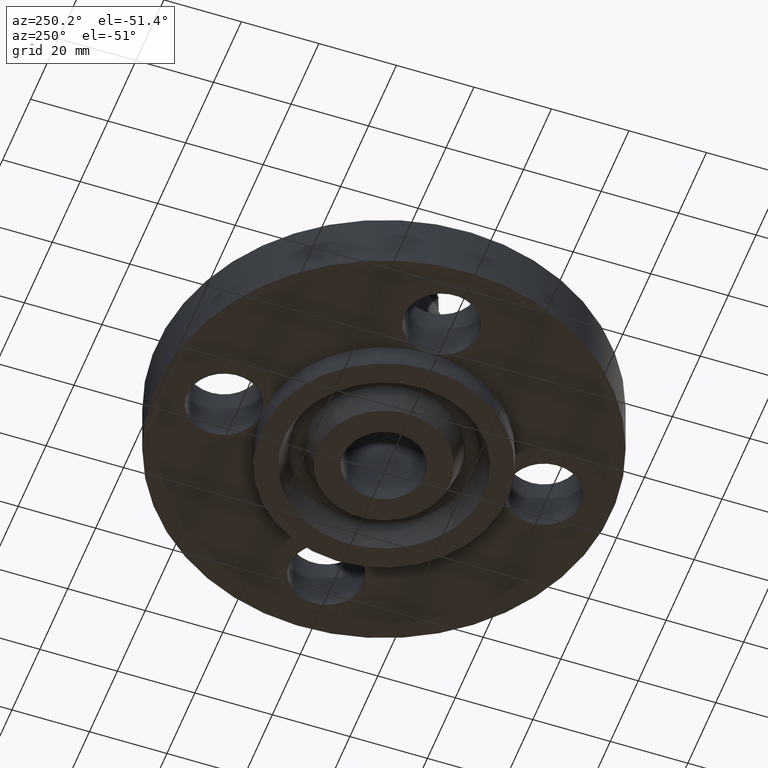
[diagram: clean part render]
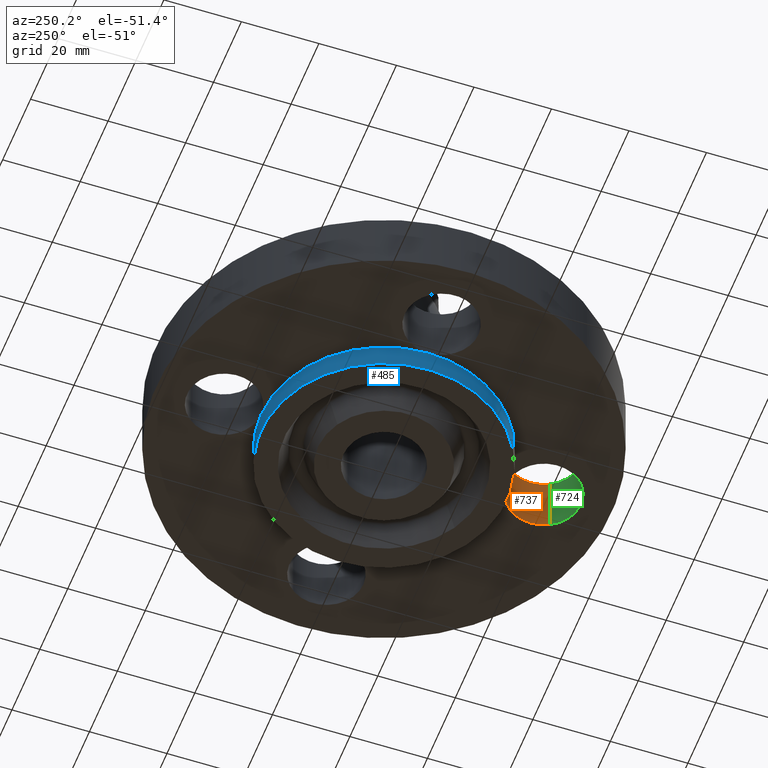
[diagram: same view with three faces highlighted in distinct colors, each labeled with its STEP entity id]
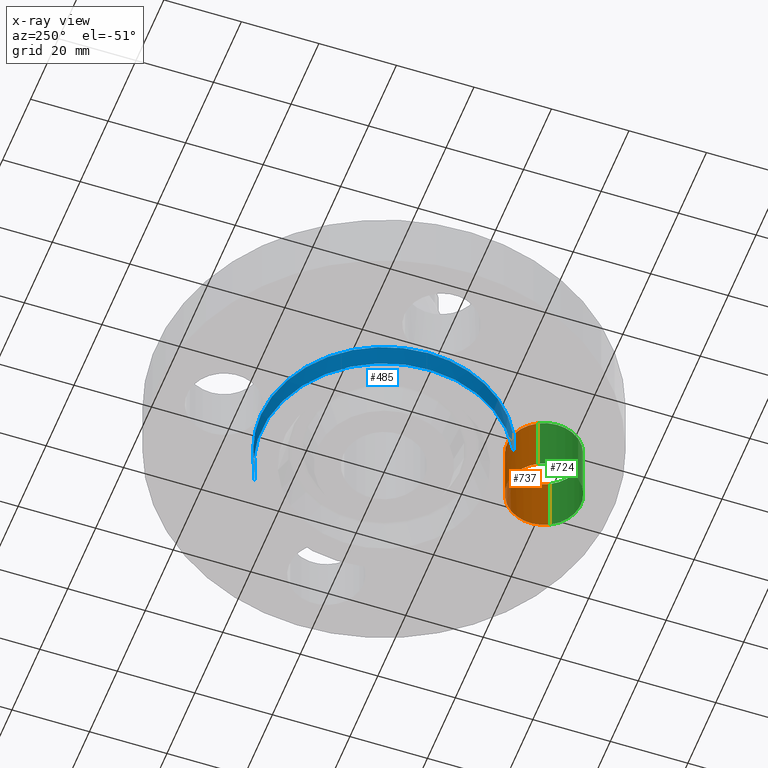
[diagram: x-ray of the same camera — body ghosted, the three highlighted faces saturated]
A machine part, auxiliary view with three faces highlighted in distinct colors.
The next image is the same camera in x-ray (body ghosted, the three faces saturated) — at least one of them is partly hidden behind the body in this view.
Their STEP definitions:

[orange] entity #737 — the highlighted cylindrical surface (partial cylindrical patch) has radius 9.525 mm, axis along (-0, 0, -1).
#530=AXIS2_PLACEMENT_3D('Circle Axis2P3D',#528,#529,$) ;
#544=AXIS2_PLACEMENT_3D('Circle Axis2P3D',#542,#543,$) ;
#697=AXIS2_PLACEMENT_3D('Cylinder Axis2P3D',#694,#695,#696) ;
#727=AXIS2_PLACEMENT_3D('Circle Axis2P3D',#725,#726,$) ;
#502=CARTESIAN_POINT('Vertex',(2.02112938519E-016,-1.25000000001,0.)) ;
#528=CARTESIAN_POINT('Axis2P3D Location',(2.70999320971E-016,-1.62500000001,0.)) ;
#532=CARTESIAN_POINT('Vertex',(-0.32909346071,-1.44521542303,0.)) ;
#539=CARTESIAN_POINT('Vertex',(0.32909346071,-1.80478457698,0.)) ;
#542=CARTESIAN_POINT('Axis2P3D Location',(2.70999320971E-016,-1.62500000001,0.)) ;
#694=CARTESIAN_POINT('Axis2P3D Location',(1.99005104862E-016,-1.62500000001,0.616062992128)) ;
#699=CARTESIAN_POINT('Line Origine',(0.32909346071,-1.80478457698,0.310000000001)) ;
#703=CARTESIAN_POINT('Vertex',(0.32909346071,-1.80478457698,0.620000000002)) ;
#706=CARTESIAN_POINT('Line Origine',(-0.32909346071,-1.44521542303,0.310000000001)) ;
#710=CARTESIAN_POINT('Vertex',(-0.32909346071,-1.44521542303,0.620000000002)) ;
#725=CARTESIAN_POINT('Axis2P3D Location',(1.99005104862E-016,-1.62500000001,0.620000000002)) ;
#529=DIRECTION('Axis2P3D Direction',(0.,0.,-0.0393700787402)) ;
#543=DIRECTION('Axis2P3D Direction',(0.,0.,-0.0393700787402)) ;
#695=DIRECTION('Axis2P3D Direction',(-0.,0.,-0.0393700787402)) ;
#696=DIRECTION('Axis2P3D XDirection',(-0.0345504945626,0.0188750212049,0.)) ;
#700=DIRECTION('Vector Direction',(0.,0.,-0.0393700787402)) ;
#707=DIRECTION('Vector Direction',(0.,0.,-0.0393700787402)) ;
#726=DIRECTION('Axis2P3D Direction',(-0.,0.,-0.0393700787402)) ;
#701=VECTOR('Line Direction',#700,0.0393700787402) ;
#708=VECTOR('Line Direction',#707,0.0393700787402) ;
#731=ORIENTED_EDGE('',*,*,#712,.F.) ;
#732=ORIENTED_EDGE('',*,*,#534,.T.) ;
#733=ORIENTED_EDGE('',*,*,#546,.T.) ;
#734=ORIENTED_EDGE('',*,*,#705,.T.) ;
#735=ORIENTED_EDGE('',*,*,#729,.F.) ;
#737=ADVANCED_FACE('PartBody',(#736),#698,.F.) ;
#531=CIRCLE('generated circle',#530,0.375000000001) ;
#545=CIRCLE('generated circle',#544,0.375000000001) ;
#728=CIRCLE('generated circle',#727,0.375000000001) ;
#698=CYLINDRICAL_SURFACE('generated cylinder',#697,0.375000000001) ;
#534=EDGE_CURVE('',#533,#503,#531,.T.) ;
#546=EDGE_CURVE('',#503,#540,#545,.T.) ;
#705=EDGE_CURVE('',#540,#704,#702,.F.) ;
#712=EDGE_CURVE('',#533,#711,#709,.F.) ;
#729=EDGE_CURVE('',#711,#704,#728,.T.) ;
#730=EDGE_LOOP('',(#731,#732,#733,#734,#735)) ;
#736=FACE_OUTER_BOUND('',#730,.T.) ;
#702=LINE('Line',#699,#701) ;
#709=LINE('Line',#706,#708) ;
#503=VERTEX_POINT('',#502) ;
#533=VERTEX_POINT('',#532) ;
#540=VERTEX_POINT('',#539) ;
#704=VERTEX_POINT('',#703) ;
#711=VERTEX_POINT('',#710) ;

[blue] entity #485 — the highlighted cylindrical surface (partial cylindrical patch) has radius 31.75 mm, axis along (0, 0, -1).
#435=AXIS2_PLACEMENT_3D('Cylinder Axis2P3D',#432,#433,#434) ;
#439=AXIS2_PLACEMENT_3D('Circle Axis2P3D',#437,#438,$) ;
#455=AXIS2_PLACEMENT_3D('Circle Axis2P3D',#453,#454,$) ;
#462=AXIS2_PLACEMENT_3D('Circle Axis2P3D',#460,#461,$) ;
#467=AXIS2_PLACEMENT_3D('Circle Axis2P3D',#465,#466,$) ;
#79=CARTESIAN_POINT('Vertex',(3.90510912389E-015,1.25000000001,1.39870617276E-016)) ;
#432=CARTESIAN_POINT('Axis2P3D Location',(0.,0.,1.)) ;
#437=CARTESIAN_POINT('Axis2P3D Location',(0.,0.,-0.250000000001)) ;
#441=CARTESIAN_POINT('Vertex',(-0.599281923258,-1.09697820237,-0.250000000001)) ;
#443=CARTESIAN_POINT('Vertex',(0.599281923258,1.09697820237,-0.250000000001)) ;
#446=CARTESIAN_POINT('Line Origine',(-0.599281923258,-1.09697820237,-0.125)) ;
#450=CARTESIAN_POINT('Vertex',(-0.599281923258,-1.09697820237,1.39870617276E-016)) ;
#453=CARTESIAN_POINT('Axis2P3D Location',(0.,0.,1.39870617276E-016)) ;
#457=CARTESIAN_POINT('Vertex',(-1.25000000001,-1.39870617276E-016,0.)) ;
#460=CARTESIAN_POINT('Axis2P3D Location',(0.,0.,1.39870617276E-016)) ;
#465=CARTESIAN_POINT('Axis2P3D Location',(0.,0.,1.39870617276E-016)) ;
#469=CARTESIAN_POINT('Vertex',(0.599281923258,1.09697820237,1.39870617276E-016)) ;
#472=CARTESIAN_POINT('Line Origine',(0.599281923258,1.09697820237,-0.125)) ;
#433=DIRECTION('Axis2P3D Direction',(0.,0.,-0.0393700787402)) ;
#434=DIRECTION('Axis2P3D XDirection',(0.0188750212049,0.0345504945626,0.)) ;
#438=DIRECTION('Axis2P3D Direction',(0.,0.,-0.0393700787402)) ;
#447=DIRECTION('Vector Direction',(0.,0.,-0.0393700787402)) ;
#454=DIRECTION('Axis2P3D Direction',(0.,0.,-0.0393700787402)) ;
#461=DIRECTION('Axis2P3D Direction',(0.,0.,-0.0393700787402)) ;
#466=DIRECTION('Axis2P3D Direction',(0.,0.,-0.0393700787402)) ;
#473=DIRECTION('Vector Direction',(0.,0.,-0.0393700787402)) ;
#448=VECTOR('Line Direction',#447,0.0393700787402) ;
#474=VECTOR('Line Direction',#473,0.0393700787402) ;
#478=ORIENTED_EDGE('',*,*,#445,.F.) ;
#479=ORIENTED_EDGE('',*,*,#452,.T.) ;
#480=ORIENTED_EDGE('',*,*,#459,.T.) ;
#481=ORIENTED_EDGE('',*,*,#464,.T.) ;
#482=ORIENTED_EDGE('',*,*,#471,.T.) ;
#483=ORIENTED_EDGE('',*,*,#476,.F.) ;
#485=ADVANCED_FACE('PartBody',(#484),#436,.T.) ;
#440=CIRCLE('generated circle',#439,1.25000000001) ;
#456=CIRCLE('generated circle',#455,1.25000000001) ;
#463=CIRCLE('generated circle',#462,1.25000000001) ;
#468=CIRCLE('generated circle',#467,1.25000000001) ;
#436=CYLINDRICAL_SURFACE('generated cylinder',#435,1.25000000001) ;
#445=EDGE_CURVE('',#442,#444,#440,.T.) ;
#452=EDGE_CURVE('',#442,#451,#449,.F.) ;
#459=EDGE_CURVE('',#451,#458,#456,.T.) ;
#464=EDGE_CURVE('',#458,#80,#463,.T.) ;
#471=EDGE_CURVE('',#80,#470,#468,.T.) ;
#476=EDGE_CURVE('',#444,#470,#475,.F.) ;
#477=EDGE_LOOP('',(#478,#479,#480,#481,#482,#483)) ;
#484=FACE_OUTER_BOUND('',#477,.T.) ;
#449=LINE('Line',#446,#448) ;
#475=LINE('Line',#472,#474) ;
#80=VERTEX_POINT('',#79) ;
#442=VERTEX_POINT('',#441) ;
#444=VERTEX_POINT('',#443) ;
#451=VERTEX_POINT('',#450) ;
#458=VERTEX_POINT('',#457) ;
#470=VERTEX_POINT('',#469) ;

[green] entity #724 — the highlighted cylindrical surface (partial cylindrical patch) has radius 9.525 mm, axis along (-0, 0, -1).
#537=AXIS2_PLACEMENT_3D('Circle Axis2P3D',#535,#536,$) ;
#697=AXIS2_PLACEMENT_3D('Cylinder Axis2P3D',#694,#695,#696) ;
#715=AXIS2_PLACEMENT_3D('Circle Axis2P3D',#713,#714,$) ;
#532=CARTESIAN_POINT('Vertex',(-0.32909346071,-1.44521542303,0.)) ;
#535=CARTESIAN_POINT('Axis2P3D Location',(1.39870617276E-016,-1.62500000001,0.)) ;
#539=CARTESIAN_POINT('Vertex',(0.32909346071,-1.80478457698,0.)) ;
#694=CARTESIAN_POINT('Axis2P3D Location',(1.99005104862E-016,-1.62500000001,0.616062992128)) ;
#699=CARTESIAN_POINT('Line Origine',(0.32909346071,-1.80478457698,0.310000000001)) ;
#703=CARTESIAN_POINT('Vertex',(0.32909346071,-1.80478457698,0.620000000002)) ;
#706=CARTESIAN_POINT('Line Origine',(-0.32909346071,-1.44521542303,0.310000000001)) ;
#710=CARTESIAN_POINT('Vertex',(-0.32909346071,-1.44521542303,0.620000000002)) ;
#713=CARTESIAN_POINT('Axis2P3D Location',(1.99005104862E-016,-1.62500000001,0.620000000002)) ;
#536=DIRECTION('Axis2P3D Direction',(0.,0.,-0.0393700787402)) ;
#695=DIRECTION('Axis2P3D Direction',(-0.,0.,-0.0393700787402)) ;
#696=DIRECTION('Axis2P3D XDirection',(-0.0345504945626,0.0188750212049,0.)) ;
#700=DIRECTION('Vector Direction',(0.,0.,-0.0393700787402)) ;
#707=DIRECTION('Vector Direction',(0.,0.,-0.0393700787402)) ;
#714=DIRECTION('Axis2P3D Direction',(-0.,0.,-0.0393700787402)) ;
#701=VECTOR('Line Direction',#700,0.0393700787402) ;
#708=VECTOR('Line Direction',#707,0.0393700787402) ;
#719=ORIENTED_EDGE('',*,*,#705,.F.) ;
#720=ORIENTED_EDGE('',*,*,#541,.T.) ;
#721=ORIENTED_EDGE('',*,*,#712,.T.) ;
#722=ORIENTED_EDGE('',*,*,#717,.F.) ;
#724=ADVANCED_FACE('PartBody',(#723),#698,.F.) ;
#538=CIRCLE('generated circle',#537,0.375000000001) ;
#716=CIRCLE('generated circle',#715,0.375000000001) ;
#698=CYLINDRICAL_SURFACE('generated cylinder',#697,0.375000000001) ;
#541=EDGE_CURVE('',#540,#533,#538,.T.) ;
#705=EDGE_CURVE('',#540,#704,#702,.F.) ;
#712=EDGE_CURVE('',#533,#711,#709,.F.) ;
#717=EDGE_CURVE('',#704,#711,#716,.T.) ;
#718=EDGE_LOOP('',(#719,#720,#721,#722)) ;
#723=FACE_OUTER_BOUND('',#718,.T.) ;
#702=LINE('Line',#699,#701) ;
#709=LINE('Line',#706,#708) ;
#533=VERTEX_POINT('',#532) ;
#540=VERTEX_POINT('',#539) ;
#704=VERTEX_POINT('',#703) ;
#711=VERTEX_POINT('',#710) ;